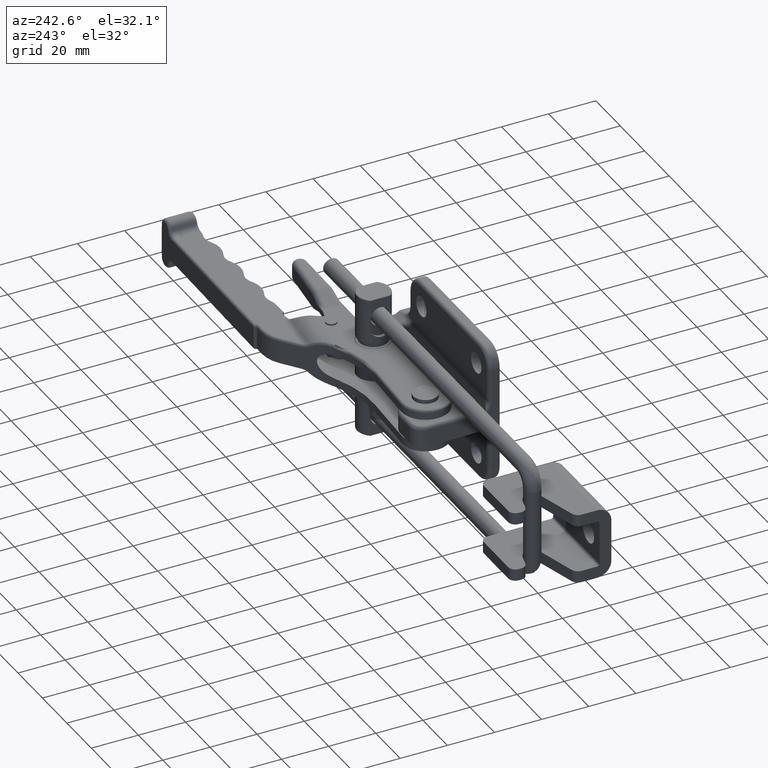
[diagram: clean part render]
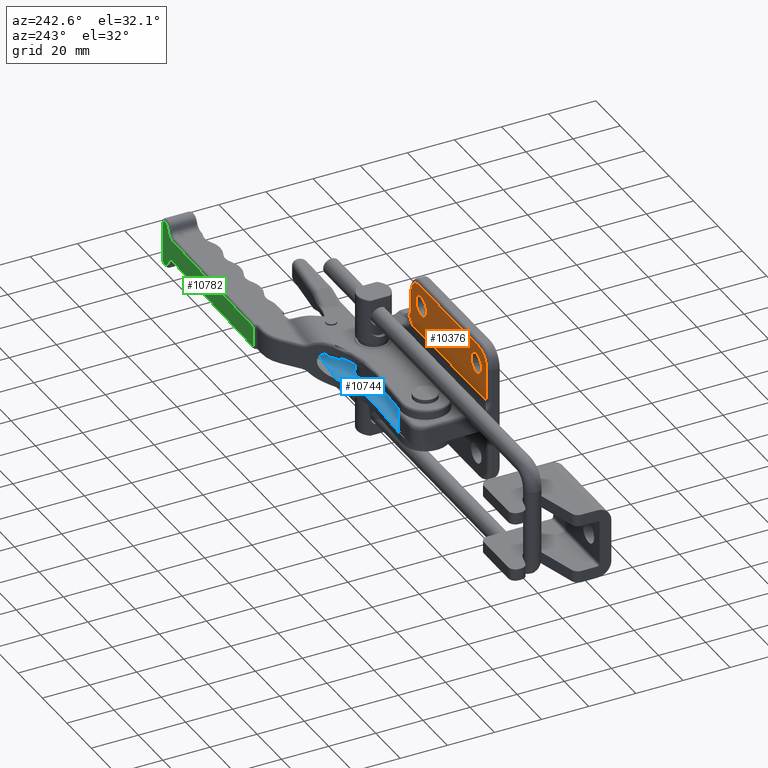
[diagram: same view with three faces highlighted in distinct colors, each labeled with its STEP entity id]
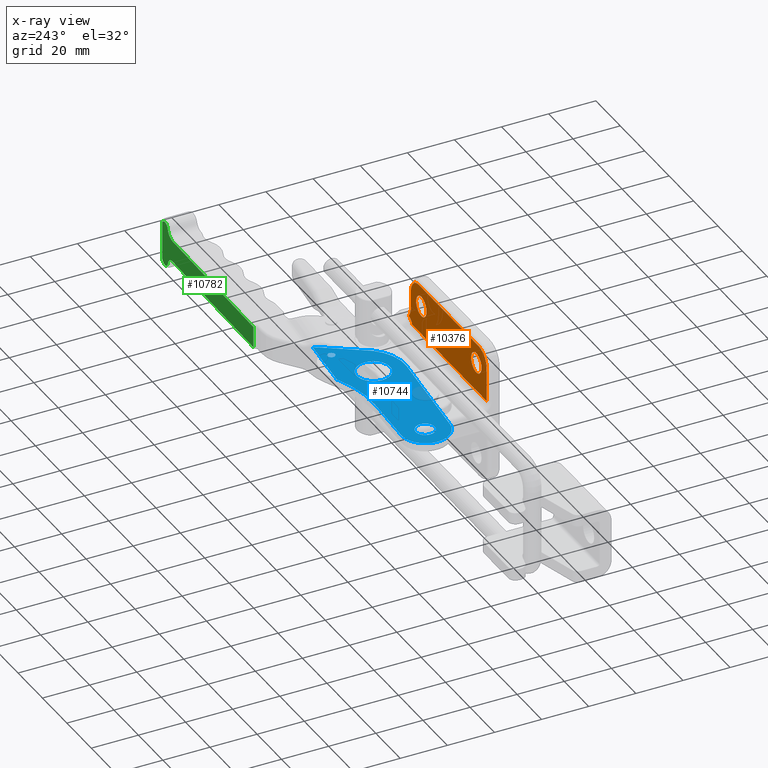
[diagram: x-ray of the same camera — body ghosted, the three highlighted faces saturated]
A machine part, auxiliary view with three faces highlighted in distinct colors.
The next image is the same camera in x-ray (body ghosted, the three faces saturated) — at least one of them is partly hidden behind the body in this view.
Their STEP definitions:

[orange] entity #10376 — the highlighted planar face has unit normal (0, 1, 0).
#233=B_SPLINE_CURVE_WITH_KNOTS('',3,(#17525,#17526,#17527,#17528,#17529,
#17530,#17531,#17532),.UNSPECIFIED.,.F.,.F.,(4,1,1,1,1,4),(0.,0.2,0.4,0.6,
0.8,1.),.UNSPECIFIED.);
#584=FACE_BOUND('',#1794,.T.);
#585=FACE_BOUND('',#1795,.T.);
#682=PLANE('',#11301);
#1077=FACE_OUTER_BOUND('',#1793,.T.);
#1793=EDGE_LOOP('',(#7520,#7521,#7522,#7523,#7524,#7525,#7526,#7527));
#1794=EDGE_LOOP('',(#7528));
#1795=EDGE_LOOP('',(#7529));
#2570=LINE('',#17397,#3100);
#2571=LINE('',#17542,#3101);
#2572=LINE('',#17545,#3102);
#2573=LINE('',#17549,#3103);
#3100=VECTOR('',#13188,60.9374040339998);
#3101=VECTOR('',#13195,7.);
#3102=VECTOR('',#13198,14.25);
#3103=VECTOR('',#13201,49.0000000000001);
#3687=CIRCLE('',#11302,7.5);
#3688=CIRCLE('',#11303,6.5);
#3689=CIRCLE('',#11304,6.5);
#3690=CIRCLE('',#11305,4.25);
#3691=CIRCLE('',#11306,4.25);
#4457=VERTEX_POINT('',#17392);
#4458=VERTEX_POINT('',#17396);
#4459=VERTEX_POINT('',#17524);
#4461=VERTEX_POINT('',#17540);
#4462=VERTEX_POINT('',#17541);
#4463=VERTEX_POINT('',#17544);
#4464=VERTEX_POINT('',#17546);
#4465=VERTEX_POINT('',#17548);
#4466=VERTEX_POINT('',#17551);
#4467=VERTEX_POINT('',#17553);
#5573=EDGE_CURVE('',#4457,#4458,#2570,.T.);
#5576=EDGE_CURVE('',#4459,#4458,#233,.T.);
#5579=EDGE_CURVE('',#4461,#4462,#2571,.T.);
#5580=EDGE_CURVE('',#4461,#4459,#3687,.T.);
#5581=EDGE_CURVE('',#4463,#4457,#2572,.T.);
#5582=EDGE_CURVE('',#4463,#4464,#3688,.T.);
#5583=EDGE_CURVE('',#4465,#4464,#2573,.T.);
#5584=EDGE_CURVE('',#4465,#4462,#3689,.T.);
#5585=EDGE_CURVE('',#4466,#4466,#3690,.T.);
#5586=EDGE_CURVE('',#4467,#4467,#3691,.T.);
#7520=ORIENTED_EDGE('',*,*,#5579,.F.);
#7521=ORIENTED_EDGE('',*,*,#5580,.T.);
#7522=ORIENTED_EDGE('',*,*,#5576,.T.);
#7523=ORIENTED_EDGE('',*,*,#5573,.F.);
#7524=ORIENTED_EDGE('',*,*,#5581,.F.);
#7525=ORIENTED_EDGE('',*,*,#5582,.T.);
#7526=ORIENTED_EDGE('',*,*,#5583,.F.);
#7527=ORIENTED_EDGE('',*,*,#5584,.T.);
#7528=ORIENTED_EDGE('',*,*,#5585,.T.);
#7529=ORIENTED_EDGE('',*,*,#5586,.T.);
#10376=ADVANCED_FACE('',(#1077,#584,#585),#682,.T.);
#11301=AXIS2_PLACEMENT_3D('',#17539,#13193,#13194);
#11302=AXIS2_PLACEMENT_3D('',#17543,#13196,#13197);
#11303=AXIS2_PLACEMENT_3D('',#17547,#13199,#13200);
#11304=AXIS2_PLACEMENT_3D('',#17550,#13202,#13203);
#11305=AXIS2_PLACEMENT_3D('',#17552,#13204,#13205);
#11306=AXIS2_PLACEMENT_3D('',#17554,#13206,#13207);
#13188=DIRECTION('',(1.,2.768599513761E-12,-1.547032518689E-12));
#13193=DIRECTION('center_axis',(0.,1.,0.));
#13194=DIRECTION('ref_axis',(0.,0.,1.));
#13195=DIRECTION('',(0.,0.,1.));
#13196=DIRECTION('center_axis',(0.,-1.,0.));
#13197=DIRECTION('ref_axis',(-1.,0.,0.));
#13198=DIRECTION('',(0.,0.,-1.));
#13199=DIRECTION('center_axis',(0.,1.,0.));
#13200=DIRECTION('ref_axis',(-1.,0.,1.47574260504E-14));
#13201=DIRECTION('',(-1.,0.,0.));
#13202=DIRECTION('center_axis',(0.,1.,0.));
#13203=DIRECTION('ref_axis',(-1.399222618112E-13,0.,1.));
#13204=DIRECTION('center_axis',(0.,-1.,0.));
#13205=DIRECTION('ref_axis',(0.,0.,1.));
#13206=DIRECTION('center_axis',(0.,-1.,0.));
#13207=DIRECTION('ref_axis',(0.,0.,1.));
#17392=CARTESIAN_POINT('',(1412.578671449,831.6022942942,7.75));
#17396=CARTESIAN_POINT('',(1473.516075483,831.6022942944,7.749999999906));
#17397=CARTESIAN_POINT('',(1412.578671449,831.6022942942,7.75));
#17524=CARTESIAN_POINT('',(1476.37258443402,831.60229437595,10.1327039355548));
#17525=CARTESIAN_POINT('Ctrl Pts',(1476.372584434,831.6022944577,10.13270393551));
#17526=CARTESIAN_POINT('Ctrl Pts',(1476.143009248,831.6022944577,10.08799314738));
#17527=CARTESIAN_POINT('Ctrl Pts',(1475.692909311,831.6022942183,9.950280878318));
#17528=CARTESIAN_POINT('Ctrl Pts',(1475.023891861,831.6022943145,9.594923166028));
#17529=CARTESIAN_POINT('Ctrl Pts',(1474.424063406,831.6022942888,9.102527833411));
#17530=CARTESIAN_POINT('Ctrl Pts',(1473.91313261,831.6022942957,8.49749906534));
#17531=CARTESIAN_POINT('Ctrl Pts',(1473.637873026,831.6022942944,8.012418822667));
#17532=CARTESIAN_POINT('Ctrl Pts',(1473.516075483,831.6022942944,7.749999999906));
#17539=CARTESIAN_POINT('Origin',(1419.078671449,831.6022942942,0.));
#17540=CARTESIAN_POINT('',(1474.578671449,831.6022942942,15.));
#17541=CARTESIAN_POINT('',(1474.578671449,831.6022942942,22.));
#17542=CARTESIAN_POINT('',(1474.578671449,831.6022942942,15.));
#17543=CARTESIAN_POINT('Origin',(1482.078671449,831.6022942942,15.));
#17544=CARTESIAN_POINT('',(1412.578671449,831.6022942942,22.));
#17545=CARTESIAN_POINT('',(1412.578671449,831.6022942942,22.));
#17546=CARTESIAN_POINT('',(1419.078671449,831.6022942942,28.5));
#17547=CARTESIAN_POINT('Origin',(1419.078671449,831.6022942942,22.));
#17548=CARTESIAN_POINT('',(1468.078671449,831.6022942942,28.5));
#17549=CARTESIAN_POINT('',(1468.078671449,831.6022942942,28.5));
#17550=CARTESIAN_POINT('Origin',(1468.078671449,831.6022942942,22.));
#17551=CARTESIAN_POINT('',(1421.078671449,831.6022942942,15.75));
#17552=CARTESIAN_POINT('Origin',(1421.078671449,831.6022942942,20.));
#17553=CARTESIAN_POINT('',(1466.078671449,831.6022942942,15.75));
#17554=CARTESIAN_POINT('Origin',(1466.078671449,831.6022942942,20.));

[blue] entity #10744 — the highlighted planar face has unit normal (-0, 0, 1).
#607=FACE_BOUND('',#2185,.T.);
#608=FACE_BOUND('',#2186,.T.);
#609=FACE_BOUND('',#2187,.T.);
#732=PLANE('',#11976);
#1445=FACE_OUTER_BOUND('',#2184,.T.);
#2184=EDGE_LOOP('',(#9233,#9234,#9235,#9236,#9237,#9238,#9239,#9240,#9241));
#2185=EDGE_LOOP('',(#9242));
#2186=EDGE_LOOP('',(#9243));
#2187=EDGE_LOOP('',(#9244));
#2817=LINE('',#28892,#3347);
#2820=LINE('',#28901,#3350);
#2821=LINE('',#28903,#3351);
#2822=LINE('',#28907,#3352);
#2823=LINE('',#28910,#3353);
#3347=VECTOR('',#14789,13.8397362566569);
#3350=VECTOR('',#14798,9.05589759471648);
#3351=VECTOR('',#14799,24.6808242436071);
#3352=VECTOR('',#14802,23.803639088674);
#3353=VECTOR('',#14805,44.1845088580816);
#4063=CIRCLE('',#11977,18.);
#4064=CIRCLE('',#11978,1.);
#4065=CIRCLE('',#11979,46.);
#4066=CIRCLE('',#11980,10.);
#4067=CIRCLE('',#11981,1.55);
#4068=CIRCLE('',#11982,4.05);
#4069=CIRCLE('',#11983,7.076357419562);
#4984=VERTEX_POINT('',#28890);
#4985=VERTEX_POINT('',#28891);
#4986=VERTEX_POINT('',#28896);
#4987=VERTEX_POINT('',#28897);
#4988=VERTEX_POINT('',#28900);
#4989=VERTEX_POINT('',#28902);
#4990=VERTEX_POINT('',#28904);
#4991=VERTEX_POINT('',#28906);
#4992=VERTEX_POINT('',#28908);
#4993=VERTEX_POINT('',#28911);
#4994=VERTEX_POINT('',#28913);
#4995=VERTEX_POINT('',#28915);
#6458=EDGE_CURVE('',#4984,#4985,#2817,.T.);
#6461=EDGE_CURVE('',#4986,#4987,#4063,.T.);
#6462=EDGE_CURVE('',#4987,#4984,#4064,.T.);
#6463=EDGE_CURVE('',#4985,#4988,#2820,.T.);
#6464=EDGE_CURVE('',#4988,#4989,#2821,.T.);
#6465=EDGE_CURVE('',#4989,#4990,#4065,.T.);
#6466=EDGE_CURVE('',#4990,#4991,#2822,.T.);
#6467=EDGE_CURVE('',#4991,#4992,#4066,.T.);
#6468=EDGE_CURVE('',#4992,#4986,#2823,.T.);
#6469=EDGE_CURVE('',#4993,#4993,#4067,.T.);
#6470=EDGE_CURVE('',#4994,#4994,#4068,.T.);
#6471=EDGE_CURVE('',#4995,#4995,#4069,.T.);
#9233=ORIENTED_EDGE('',*,*,#6461,.T.);
#9234=ORIENTED_EDGE('',*,*,#6462,.T.);
#9235=ORIENTED_EDGE('',*,*,#6458,.T.);
#9236=ORIENTED_EDGE('',*,*,#6463,.T.);
#9237=ORIENTED_EDGE('',*,*,#6464,.T.);
#9238=ORIENTED_EDGE('',*,*,#6465,.T.);
#9239=ORIENTED_EDGE('',*,*,#6466,.T.);
#9240=ORIENTED_EDGE('',*,*,#6467,.T.);
#9241=ORIENTED_EDGE('',*,*,#6468,.T.);
#9242=ORIENTED_EDGE('',*,*,#6469,.T.);
#9243=ORIENTED_EDGE('',*,*,#6470,.T.);
#9244=ORIENTED_EDGE('',*,*,#6471,.T.);
#10744=ADVANCED_FACE('',(#1445,#607,#608,#609),#732,.T.);
#11976=AXIS2_PLACEMENT_3D('',#28895,#14792,#14793);
#11977=AXIS2_PLACEMENT_3D('',#28898,#14794,#14795);
#11978=AXIS2_PLACEMENT_3D('',#28899,#14796,#14797);
#11979=AXIS2_PLACEMENT_3D('',#28905,#14800,#14801);
#11980=AXIS2_PLACEMENT_3D('',#28909,#14803,#14804);
#11981=AXIS2_PLACEMENT_3D('',#28912,#14806,#14807);
#11982=AXIS2_PLACEMENT_3D('',#28914,#14808,#14809);
#11983=AXIS2_PLACEMENT_3D('',#28916,#14810,#14811);
#14789=DIRECTION('',(0.563163489027912,0.826345499549618,0.));
#14792=DIRECTION('center_axis',(0.,0.,1.));
#14793=DIRECTION('ref_axis',(1.,0.,0.));
#14794=DIRECTION('center_axis',(0.,0.,1.));
#14795=DIRECTION('ref_axis',(-0.1008954905275,-0.994897029843398,0.));
#14796=DIRECTION('center_axis',(0.,0.,1.));
#14797=DIRECTION('ref_axis',(0.7602486645939,-0.649632178993,0.));
#14798=DIRECTION('',(0.556161293902499,0.831074374027198,0.));
#14799=DIRECTION('',(-0.994897029843438,0.100895490527104,0.));
#14800=DIRECTION('center_axis',(0.,0.,-1.));
#14801=DIRECTION('ref_axis',(0.437874271934526,-0.899036218390454,0.));
#14802=DIRECTION('',(-0.998678449099493,0.0513941174088097,0.));
#14803=DIRECTION('center_axis',(0.,0.,1.));
#14804=DIRECTION('ref_axis',(0.0513941174091986,0.998678449099473,0.));
#14805=DIRECTION('',(0.994897029843448,-0.100895490527005,0.));
#14806=DIRECTION('center_axis',(0.,0.,-1.));
#14807=DIRECTION('ref_axis',(1.,0.,0.));
#14808=DIRECTION('center_axis',(0.,0.,-1.));
#14809=DIRECTION('ref_axis',(1.,0.,0.));
#14810=DIRECTION('center_axis',(0.,0.,-1.));
#14811=DIRECTION('ref_axis',(1.,0.,0.));
#28890=CARTESIAN_POINT('',(1481.595444799,844.0965423069,-5.25));
#28891=CARTESIAN_POINT('',(1489.389478956,855.5329460779,-5.25));
#28892=CARTESIAN_POINT('',(1481.595444799,844.0965423069,-5.25));
#28895=CARTESIAN_POINT('Origin',(1447.364793991,781.0709192894,-5.25));
#28896=CARTESIAN_POINT('',(1466.028753171,837.7953063009,-5.25));
#28897=CARTESIAN_POINT('',(1481.529347964,844.0100736169,-5.25));
#28898=CARTESIAN_POINT('Origin',(1467.844872,855.7034528381,-5.25));
#28899=CARTESIAN_POINT('Origin',(1480.769099299,844.6597057959,-5.25));
#28900=CARTESIAN_POINT('',(1494.42601868,863.0590705025,-5.25));
#28901=CARTESIAN_POINT('',(1489.389478956,855.5329460779,-5.25));
#28902=CARTESIAN_POINT('',(1469.87113994783,865.549254389746,-5.25));
#28903=CARTESIAN_POINT('',(1494.42601868,863.0590705025,-5.25));
#28904=CARTESIAN_POINT('',(1447.364793991,860.9657117631,-5.25));
#28905=CARTESIAN_POINT('Origin',(1449.728923392,906.9049204217,-5.25));
#28906=CARTESIAN_POINT('',(1423.592612623,862.1890787852,-5.25));
#28907=CARTESIAN_POINT('',(1447.364793991,860.9657117631,-5.25));
#28908=CARTESIAN_POINT('',(1422.069716543,842.2533239958,-5.25));
#28909=CARTESIAN_POINT('Origin',(1423.078671449,852.2022942942,-5.25));
#28910=CARTESIAN_POINT('',(1422.069716543,842.2533239958,-5.25));
#28911=CARTESIAN_POINT('',(1484.574376421,859.3778837844,-5.25));
#28912=CARTESIAN_POINT('Origin',(1486.124376421,859.3778837844,-5.25));
#28913=CARTESIAN_POINT('',(1427.128671449,852.2022942942,-5.25));
#28914=CARTESIAN_POINT('Origin',(1423.078671449,852.2022942942,-5.25));
#28915=CARTESIAN_POINT('',(1461.51312153644,850.6022942942,-5.25));
#28916=CARTESIAN_POINT('Origin',(1468.589478956,850.6022942942,-5.25));

[green] entity #10782 — the highlighted planar face has unit normal (-0.0131, -0.9999, -0).
#425=B_SPLINE_CURVE_WITH_KNOTS('',3,(#26454,#26455,#26456,#26457,#26458,
#26459,#26460,#26461,#26462,#26463,#26464,#26465,#26466,#26467,#26468,#26469,
#26470,#26471,#26472,#26473,#26474,#26475,#26476,#26477,#26478,#26479,#26480,
#26481,#26482,#26483,#26484,#26485,#26486,#26487,#26488,#26489,#26490,#26491,
#26492,#26493,#26494,#26495,#26496,#26497,#26498,#26499,#26500,#26501,#26502,
#26503,#26504,#26505,#26506,#26507,#26508,#26509,#26510,#26511,#26512,#26513,
#26514),.UNSPECIFIED.,.F.,.F.,(4,3,3,3,3,3,3,3,3,3,3,3,3,3,3,3,3,3,3,3,
4),(0.,0.0450235349244206,0.0913563487151687,0.138272003353947,0.185690753715187,
0.2,0.254539165078523,0.309411725995415,0.364740403168471,0.4,0.501466094598851,
0.6,0.655339422802585,0.710383166990744,0.764905968275399,0.8,0.847392291533651,
0.894187855672447,0.940389245280325,0.985478090371512,1.),.UNSPECIFIED.);
#469=B_SPLINE_CURVE_WITH_KNOTS('',3,(#29260,#29261,#29262,#29263,#29264,
#29265,#29266,#29267,#29268,#29269,#29270,#29271,#29272,#29273,#29274,#29275,
#29276,#29277,#29278,#29279,#29280,#29281,#29282,#29283,#29284,#29285,#29286,
#29287,#29288,#29289,#29290,#29291,#29292,#29293,#29294,#29295,#29296,#29297,
#29298,#29299,#29300,#29301,#29302,#29303,#29304,#29305,#29306,#29307,#29308,
#29309,#29310,#29311,#29312,#29313,#29314,#29315,#29316,#29317,#29318,#29319,
#29320),.UNSPECIFIED.,.F.,.F.,(4,3,3,3,3,3,3,3,3,3,3,3,3,3,3,3,3,3,3,3,
4),(0.,0.0449708862223974,0.0912493920369136,0.138107952042733,0.185466936322995,
0.2,0.254563954721358,0.309462860249104,0.364822227403985,0.4,0.501542890917698,
0.6,0.655296408265409,0.710300554964332,0.764786991497401,0.8,0.847449884517394,
0.894299123205989,0.940551638560953,0.985690939144371,1.),.UNSPECIFIED.);
#477=B_SPLINE_CURVE_WITH_KNOTS('',3,(#29569,#29570,#29571,#29572,#29573,
#29574,#29575),.UNSPECIFIED.,.F.,.F.,(4,1,1,1,4),(0.,0.25,0.5,0.75,1.),
 .UNSPECIFIED.);
#478=B_SPLINE_CURVE_WITH_KNOTS('',3,(#29582,#29583,#29584,#29585,#29586,
#29587,#29588),.UNSPECIFIED.,.F.,.F.,(4,1,1,1,4),(0.,0.25,0.5,0.75,1.),
 .UNSPECIFIED.);
#479=B_SPLINE_CURVE_WITH_KNOTS('',3,(#29592,#29593,#29594,#29595,#29596,
#29597,#29598,#29599,#29600,#29601,#29602,#29603,#29604,#29605,#29606,#29607,
#29608,#29609,#29610,#29611,#29612,#29613,#29614,#29615,#29616,#29617,#29618,
#29619,#29620,#29621,#29622,#29623,#29624,#29625,#29626,#29627,#29628,#29629),
 .UNSPECIFIED.,.F.,.F.,(4,2,2,2,2,2,2,2,2,2,2,2,2,2,2,2,2,2,4),(0.,0.0516213886161952,
0.104081002306218,0.157448143995541,0.2,0.261670194322705,0.323761981481105,
0.386352785456153,0.4,0.515871561967658,0.6,0.662567342294473,0.724764190911421,
0.786349453105486,0.8,0.853306571537472,0.906124349745927,0.957700334145968,
1.),.UNSPECIFIED.);
#480=B_SPLINE_CURVE_WITH_KNOTS('',3,(#29630,#29631,#29632,#29633,#29634,
#29635,#29636,#29637,#29638,#29639,#29640,#29641,#29642,#29643,#29644,#29645,
#29646,#29647,#29648,#29649,#29650,#29651,#29652,#29653,#29654,#29655,#29656,
#29657,#29658,#29659,#29660,#29661,#29662,#29663,#29664,#29665,#29666,#29667),
 .UNSPECIFIED.,.F.,.F.,(4,2,2,2,2,2,2,2,2,2,2,2,2,2,2,2,2,2,4),(2.95767299489479E-14,
0.051645036092066,0.10410411150623,0.157430442392612,0.2,0.261704952390363,
0.323835287706328,0.38646455269097,0.4,0.515961571021608,0.6,0.662514236281628,
0.724658325644794,0.786196404957401,0.8,0.853343159763388,0.90617240055389,
0.957720559956502,1.),.UNSPECIFIED.);
#738=PLANE('',#12025);
#1483=FACE_OUTER_BOUND('',#2231,.T.);
#2231=EDGE_LOOP('',(#9393,#9394,#9395,#9396,#9397,#9398,#9399,#9400,#9401,
#9402,#9403,#9404));
#2777=LINE('',#26525,#3307);
#2779=LINE('',#26657,#3309);
#2833=LINE('',#29241,#3363);
#2839=LINE('',#29580,#3369);
#2840=LINE('',#29589,#3370);
#2841=LINE('',#29591,#3371);
#3307=VECTOR('',#14571,67.9736016587771);
#3309=VECTOR('',#14577,9.);
#3363=VECTOR('',#14883,67.9736016587693);
#3369=VECTOR('',#14911,0.0911124488487401);
#3370=VECTOR('',#14912,16.9383365791646);
#3371=VECTOR('',#14913,0.0911124488487401);
#4905=VERTEX_POINT('',#26450);
#4906=VERTEX_POINT('',#26452);
#4907=VERTEX_POINT('',#26516);
#4910=VERTEX_POINT('',#26656);
#5000=VERTEX_POINT('',#29240);
#5001=VERTEX_POINT('',#29259);
#5009=VERTEX_POINT('',#29541);
#5011=VERTEX_POINT('',#29568);
#5012=VERTEX_POINT('',#29578);
#5013=VERTEX_POINT('',#29579);
#5014=VERTEX_POINT('',#29581);
#5015=VERTEX_POINT('',#29590);
#6323=EDGE_CURVE('',#4906,#4905,#425,.T.);
#6325=EDGE_CURVE('',#4905,#4907,#2777,.T.);
#6329=EDGE_CURVE('',#4907,#4910,#2779,.T.);
#6496=EDGE_CURVE('',#4910,#5000,#2833,.T.);
#6498=EDGE_CURVE('',#5000,#5001,#469,.T.);
#6515=EDGE_CURVE('',#5011,#5009,#477,.T.);
#6517=EDGE_CURVE('',#5012,#5013,#2839,.T.);
#6518=EDGE_CURVE('',#5014,#5012,#478,.T.);
#6519=EDGE_CURVE('',#5009,#5014,#2840,.T.);
#6520=EDGE_CURVE('',#5015,#5011,#2841,.T.);
#6521=EDGE_CURVE('',#5001,#5015,#479,.T.);
#6522=EDGE_CURVE('',#5013,#4906,#480,.T.);
#9393=ORIENTED_EDGE('',*,*,#6517,.F.);
#9394=ORIENTED_EDGE('',*,*,#6518,.F.);
#9395=ORIENTED_EDGE('',*,*,#6519,.F.);
#9396=ORIENTED_EDGE('',*,*,#6515,.F.);
#9397=ORIENTED_EDGE('',*,*,#6520,.F.);
#9398=ORIENTED_EDGE('',*,*,#6521,.F.);
#9399=ORIENTED_EDGE('',*,*,#6498,.F.);
#9400=ORIENTED_EDGE('',*,*,#6496,.F.);
#9401=ORIENTED_EDGE('',*,*,#6329,.F.);
#9402=ORIENTED_EDGE('',*,*,#6325,.F.);
#9403=ORIENTED_EDGE('',*,*,#6323,.F.);
#9404=ORIENTED_EDGE('',*,*,#6522,.F.);
#10782=ADVANCED_FACE('',(#1483),#738,.F.);
#12025=AXIS2_PLACEMENT_3D('',#29577,#14909,#14910);
#14571=DIRECTION('',(-0.999904767694858,0.0138005630715294,0.));
#14577=DIRECTION('',(1.288450827512E-12,1.503192632097E-12,-1.));
#14883=DIRECTION('',(0.999904767694856,-0.0138005630717394,0.));
#14909=DIRECTION('center_axis',(-0.0138005631309105,-0.999904767694039,
0.));
#14910=DIRECTION('ref_axis',(0.999904767694039,-0.0138005631308716,0.));
#14911=DIRECTION('',(-0.99990476769402,0.0138005631323103,-3.89926267003808E-14));
#14912=DIRECTION('',(1.281642273621E-8,-7.802320698729E-9,1.));
#14913=DIRECTION('',(0.99990476769402,-0.0138005631322703,-3.89926267002808E-14));
#26450=CARTESIAN_POINT('',(1571.468011068,882.4769422576,4.5));
#26452=CARTESIAN_POINT('',(1575.3656251,882.4231478661,7.600775328062));
#26454=CARTESIAN_POINT('Ctrl Pts',(1575.3656251,882.423147866178,7.60077532806202));
#26455=CARTESIAN_POINT('Ctrl Pts',(1575.3467601522,882.423408237882,7.5205563852631));
#26456=CARTESIAN_POINT('Ctrl Pts',(1575.32576059768,882.423697973975,7.44161665996632));
#26457=CARTESIAN_POINT('Ctrl Pts',(1575.3026455502,882.42401703343,7.36383849220293));
#26458=CARTESIAN_POINT('Ctrl Pts',(1575.27885831998,882.424345371095,7.28379854487281));
#26459=CARTESIAN_POINT('Ctrl Pts',(1575.2528304511,882.424704712281,7.20498845640978));
#26460=CARTESIAN_POINT('Ctrl Pts',(1575.22454154565,882.425095025272,7.12731667858477));
#26461=CARTESIAN_POINT('Ctrl Pts',(1575.1958967816,882.425490248182,7.04866783329608));
#26462=CARTESIAN_POINT('Ctrl Pts',(1575.16493331663,882.425917197212,6.97118593615652));
#26463=CARTESIAN_POINT('Ctrl Pts',(1575.13159414494,882.426376472844,6.89481605795029));
#26464=CARTESIAN_POINT('Ctrl Pts',(1575.0978974637,882.426840673476,6.81762723435479));
#26465=CARTESIAN_POINT('Ctrl Pts',(1575.0617734273,882.427337894418,6.74157418933183));
#26466=CARTESIAN_POINT('Ctrl Pts',(1575.02313323377,882.427869655663,6.66664393650734));
#26467=CARTESIAN_POINT('Ctrl Pts',(1575.01147303519,882.428030121777,6.64403272398738));
#26468=CARTESIAN_POINT('Ctrl Pts',(1574.9995835317,882.428193739242,6.62152406587965));
#26469=CARTESIAN_POINT('Ctrl Pts',(1574.98746184466,882.428360564232,6.59911842473681));
#26470=CARTESIAN_POINT('Ctrl Pts',(1574.94126048105,882.428996411534,6.51372014891875));
#26471=CARTESIAN_POINT('Ctrl Pts',(1574.89180070839,882.429676700736,6.42971604546373));
#26472=CARTESIAN_POINT('Ctrl Pts',(1574.8392215042,882.430399508725,6.34744440268893));
#26473=CARTESIAN_POINT('Ctrl Pts',(1574.78632088534,882.431126735212,6.26466983649611));
#26474=CARTESIAN_POINT('Ctrl Pts',(1574.73026276053,882.431896997903,6.18364937403155));
#26475=CARTESIAN_POINT('Ctrl Pts',(1574.67123979738,882.432707808219,6.10471316121387));
#26476=CARTESIAN_POINT('Ctrl Pts',(1574.61172621865,882.43352535822,6.02512080825504));
#26477=CARTESIAN_POINT('Ctrl Pts',(1574.54919853183,882.4343841311,5.94764793556537));
#26478=CARTESIAN_POINT('Ctrl Pts',(1574.48390303885,882.435281081213,5.87261208049306));
#26479=CARTESIAN_POINT('Ctrl Pts',(1574.44229183694,882.435852685325,5.82479358684856));
#26480=CARTESIAN_POINT('Ctrl Pts',(1574.39955754935,882.436439784295,5.77796437344555));
#26481=CARTESIAN_POINT('Ctrl Pts',(1574.3557734129,882.437041488367,5.73220100412502));
#26482=CARTESIAN_POINT('Ctrl Pts',(1574.22977635876,882.438773004545,5.60050833665567));
#26483=CARTESIAN_POINT('Ctrl Pts',(1574.09490667751,882.440630070777,5.47772951718796));
#26484=CARTESIAN_POINT('Ctrl Pts',(1573.95228683792,882.442598612267,5.36472518693577));
#26485=CARTESIAN_POINT('Ctrl Pts',(1573.81378845737,882.444510266419,5.25498648031647));
#26486=CARTESIAN_POINT('Ctrl Pts',(1573.66798021059,882.446527049156,5.15446488774701));
#26487=CARTESIAN_POINT('Ctrl Pts',(1573.51586138442,882.448633834477,5.06398596324454));
#26488=CARTESIAN_POINT('Ctrl Pts',(1573.43042715745,882.449817064586,5.01317044509998));
#26489=CARTESIAN_POINT('Ctrl Pts',(1573.34301476448,882.451027876844,4.96546736596894));
#26490=CARTESIAN_POINT('Ctrl Pts',(1573.25397944626,882.452260921118,4.92107720061425));
#26491=CARTESIAN_POINT('Ctrl Pts',(1573.16541984388,882.453487377235,4.87692421197593));
#26492=CARTESIAN_POINT('Ctrl Pts',(1573.07525509444,882.45473581831,4.83604900526686));
#26493=CARTESIAN_POINT('Ctrl Pts',(1572.98384838704,882.456000943487,4.79859940251306));
#26494=CARTESIAN_POINT('Ctrl Pts',(1572.89330676751,882.457254095314,4.76150422886072));
#26495=CARTESIAN_POINT('Ctrl Pts',(1572.80154703373,882.458523610521,4.7277702118442));
#26496=CARTESIAN_POINT('Ctrl Pts',(1572.70892863418,882.459804424405,4.6974904704025));
#26497=CARTESIAN_POINT('Ctrl Pts',(1572.64931406971,882.460628830378,4.6780006756427));
#26498=CARTESIAN_POINT('Ctrl Pts',(1572.58934387389,882.461457919651,4.65994094353215));
#26499=CARTESIAN_POINT('Ctrl Pts',(1572.52911407245,882.462290375663,4.64332465151086));
#26500=CARTESIAN_POINT('Ctrl Pts',(1572.44777749842,882.463414555362,4.62088538999024));
#26501=CARTESIAN_POINT('Ctrl Pts',(1572.36591431386,882.46454600191,4.6011796495958));
#26502=CARTESIAN_POINT('Ctrl Pts',(1572.28350409416,882.465684552069,4.58411323296267));
#26503=CARTESIAN_POINT('Ctrl Pts',(1572.20213152074,882.466808766478,4.56726170356135));
#26504=CARTESIAN_POINT('Ctrl Pts',(1572.12022527765,882.467939911836,4.5529831152188));
#26505=CARTESIAN_POINT('Ctrl Pts',(1572.0377298644,882.469078812945,4.54122236672499));
#26506=CARTESIAN_POINT('Ctrl Pts',(1571.95628191525,882.470203253153,4.52961094728294));
#26507=CARTESIAN_POINT('Ctrl Pts',(1571.87425938715,882.471335283817,4.52045348829962));
#26508=CARTESIAN_POINT('Ctrl Pts',(1571.79157811668,882.472476394464,4.51373689150564));
#26509=CARTESIAN_POINT('Ctrl Pts',(1571.71088783815,882.473590026795,4.50718203255109));
#26510=CARTESIAN_POINT('Ctrl Pts',(1571.62956987853,882.474712356593,4.50295162791107));
#26511=CARTESIAN_POINT('Ctrl Pts',(1571.54752068423,882.475844841132,4.50107615176692));
#26512=CARTESIAN_POINT('Ctrl Pts',(1571.52109483583,882.476209584077,4.50047211112183));
#26513=CARTESIAN_POINT('Ctrl Pts',(1571.49459295263,882.476575377715,4.50011270418158));
#26514=CARTESIAN_POINT('Ctrl Pts',(1571.468011068,882.47694225763,4.5));
#26516=CARTESIAN_POINT('',(1503.50088269201,883.415016235522,4.5));
#26525=CARTESIAN_POINT('',(1571.468011068,882.4769422576,4.5));
#26656=CARTESIAN_POINT('',(1503.50088269202,883.415016235527,-4.5));
#26657=CARTESIAN_POINT('',(1503.500882692,883.4150162345,4.5));
#29240=CARTESIAN_POINT('',(1571.468011068,882.4769422576,-4.5));
#29241=CARTESIAN_POINT('',(1503.500882692,883.4150162345,-4.5));
#29259=CARTESIAN_POINT('',(1575.365625474,882.423147861,-7.600776318592));
#29260=CARTESIAN_POINT('Ctrl Pts',(1571.468011068,882.476942257627,-4.50000000000002));
#29261=CARTESIAN_POINT('Ctrl Pts',(1571.5503271131,882.475806141653,-4.50034860558657));
#29262=CARTESIAN_POINT('Ctrl Pts',(1571.63187778822,882.474680491516,-4.50305955700992));
#29263=CARTESIAN_POINT('Ctrl Pts',(1571.71277331545,882.473564009568,-4.50808765188954));
#29264=CARTESIAN_POINT('Ctrl Pts',(1571.79602104396,882.472415063646,-4.5132619488107));
#29265=CARTESIAN_POINT('Ctrl Pts',(1571.87857528189,882.471275768378,-4.52089036227416));
#29266=CARTESIAN_POINT('Ctrl Pts',(1571.96052969579,882.470144518634,-4.53097206008653));
#29267=CARTESIAN_POINT('Ctrl Pts',(1572.04351132524,882.468999089821,-4.54118012176844));
#29268=CARTESIAN_POINT('Ctrl Pts',(1572.12587827577,882.467861870054,-4.55390372574761));
#29269=CARTESIAN_POINT('Ctrl Pts',(1572.20769667032,882.466731758884,-4.5691858845206));
#29270=CARTESIAN_POINT('Ctrl Pts',(1572.29038884141,882.465589578733,-4.58463124854819));
#29271=CARTESIAN_POINT('Ctrl Pts',(1572.37252098572,882.464454646196,-4.60269047420157));
#29272=CARTESIAN_POINT('Ctrl Pts',(1572.45412537488,882.46332680788,-4.62344686524706));
#29273=CARTESIAN_POINT('Ctrl Pts',(1572.47916733475,882.462980707846,-4.62981638430143));
#29274=CARTESIAN_POINT('Ctrl Pts',(1572.5041593244,882.46263528332,-4.63644014649111));
#29275=CARTESIAN_POINT('Ctrl Pts',(1572.5291015352,882.462290548948,-4.64332120191924));
#29276=CARTESIAN_POINT('Ctrl Pts',(1572.62274632277,882.460996254019,-4.6691559195782));
#29277=CARTESIAN_POINT('Ctrl Pts',(1572.71576389914,882.459710085098,-4.69848256669207));
#29278=CARTESIAN_POINT('Ctrl Pts',(1572.80779312911,882.458437021641,-4.73124148878727));
#29279=CARTESIAN_POINT('Ctrl Pts',(1572.90038729732,882.457156143251,-4.76420150751171));
#29280=CARTESIAN_POINT('Ctrl Pts',(1572.99198051906,882.455888536078,-4.80063598445321));
#29281=CARTESIAN_POINT('Ctrl Pts',(1573.08220737826,882.454639414593,-4.84043109749758));
#29282=CARTESIAN_POINT('Ctrl Pts',(1573.1731910104,882.453379816169,-4.88055998991932));
#29283=CARTESIAN_POINT('Ctrl Pts',(1573.26278478477,882.452139022853,-4.92410600899724));
#29284=CARTESIAN_POINT('Ctrl Pts',(1573.35062333237,882.450922432777,-4.97090017632665));
#29285=CARTESIAN_POINT('Ctrl Pts',(1573.40643980231,882.450149358025,-5.00063524487483));
#29286=CARTESIAN_POINT('Ctrl Pts',(1573.46154773996,882.449386057193,-5.03168083227654));
#29287=CARTESIAN_POINT('Ctrl Pts',(1573.51585669375,882.448633899368,-5.06398316798901));
#29288=CARTESIAN_POINT('Ctrl Pts',(1573.67262296303,882.446462747689,-5.15722592640087));
#29289=CARTESIAN_POINT('Ctrl Pts',(1573.82268752758,882.444387191583,-5.26113432309009));
#29290=CARTESIAN_POINT('Ctrl Pts',(1573.96495602314,882.442423752424,-5.37480536042983));
#29291=CARTESIAN_POINT('Ctrl Pts',(1574.1029011285,882.44051998012,-5.48502205429891));
#29292=CARTESIAN_POINT('Ctrl Pts',(1574.23351766522,882.438721588306,-5.60441803569068));
#29293=CARTESIAN_POINT('Ctrl Pts',(1574.35577935607,882.437041406599,-5.73220720506541));
#29294=CARTESIAN_POINT('Ctrl Pts',(1574.42444511759,882.436097767135,-5.80397736110093));
#29295=CARTESIAN_POINT('Ctrl Pts',(1574.49052654122,882.435190073726,-5.87837030885255));
#29296=CARTESIAN_POINT('Ctrl Pts',(1574.55374899409,882.434321671687,-5.9550855600286));
#29297=CARTESIAN_POINT('Ctrl Pts',(1574.61663729337,882.433457859468,-6.03139534328755));
#29298=CARTESIAN_POINT('Ctrl Pts',(1574.67669648554,882.432632924717,-6.11000251894379));
#29299=CARTESIAN_POINT('Ctrl Pts',(1574.73370137411,882.431849688153,-6.19058689644191));
#29300=CARTESIAN_POINT('Ctrl Pts',(1574.79016972112,882.43107382357,-6.27041279746246));
#29301=CARTESIAN_POINT('Ctrl Pts',(1574.84364080452,882.430338878185,-6.35217844172939));
#29302=CARTESIAN_POINT('Ctrl Pts',(1574.8939434905,882.429647110457,-6.43555483016596));
#29303=CARTESIAN_POINT('Ctrl Pts',(1574.92645266199,882.429200040976,-6.48943857925553));
#29304=CARTESIAN_POINT('Ctrl Pts',(1574.95763947875,882.428770995682,-6.5439947399195));
#29305=CARTESIAN_POINT('Ctrl Pts',(1574.98746901641,882.428360465546,-6.59913170131101));
#29306=CARTESIAN_POINT('Ctrl Pts',(1575.02766461962,882.427807272044,-6.6734293135265));
#29307=CARTESIAN_POINT('Ctrl Pts',(1575.06530884652,882.427289290556,-6.74885594611126));
#29308=CARTESIAN_POINT('Ctrl Pts',(1575.10049839946,882.426804742272,-6.82541093417223));
#29309=CARTESIAN_POINT('Ctrl Pts',(1575.13524250436,882.426326327656,-6.90099684855219));
#29310=CARTESIAN_POINT('Ctrl Pts',(1575.16759408477,882.425880500226,-6.97768297267417));
#29311=CARTESIAN_POINT('Ctrl Pts',(1575.19761941867,882.425466403838,-7.05551146759224));
#29312=CARTESIAN_POINT('Ctrl Pts',(1575.22726231696,882.425057581837,-7.13234865336124));
#29313=CARTESIAN_POINT('Ctrl Pts',(1575.25463824548,882.424679708826,-7.21029948254589));
#29314=CARTESIAN_POINT('Ctrl Pts',(1575.2797788612,882.424332675482,-7.28944336125463));
#29315=CARTESIAN_POINT('Ctrl Pts',(1575.30431438757,882.423993994605,-7.36668238929352));
#29316=CARTESIAN_POINT('Ctrl Pts',(1575.32672122737,882.423684728122,-7.44505793766));
#29317=CARTESIAN_POINT('Ctrl Pts',(1575.34699288952,882.423404992209,-7.52467804076257));
#29318=CARTESIAN_POINT('Ctrl Pts',(1575.35341896266,882.423316316528,-7.54991744159291));
#29319=CARTESIAN_POINT('Ctrl Pts',(1575.35963018105,882.423230607297,-7.57528215559059));
#29320=CARTESIAN_POINT('Ctrl Pts',(1575.365625474,882.42314786098,-7.600776318592));
#29541=CARTESIAN_POINT('',(1579.84199997591,882.361364133321,-8.46916809648185));
#29568=CARTESIAN_POINT('',(1577.844017385,882.3889413994,-9.5));
#29569=CARTESIAN_POINT('Ctrl Pts',(1577.844017385,882.3889413994,-9.5));
#29570=CARTESIAN_POINT('Ctrl Pts',(1578.04233495,882.3862042447,-9.499342090977));
#29571=CARTESIAN_POINT('Ctrl Pts',(1578.426522745,882.3809017933,-9.453518741156));
#29572=CARTESIAN_POINT('Ctrl Pts',(1578.97927251,882.3732725319,-9.247840917836));
#29573=CARTESIAN_POINT('Ctrl Pts',(1579.467060112,882.3665411623,-8.915480905717));
#29574=CARTESIAN_POINT('Ctrl Pts',(1579.726709085,882.3629549964,-8.630492323687));
#29575=CARTESIAN_POINT('Ctrl Pts',(1579.841999972,882.3613637657,-8.469168093522));
#29577=CARTESIAN_POINT('Origin',(1575.842380105,882.416567752,21.));
#29578=CARTESIAN_POINT('',(1577.844017385,882.3889413994,9.5));
#29579=CARTESIAN_POINT('',(1577.752913613,882.3901988025,9.5));
#29580=CARTESIAN_POINT('',(1577.844017385,882.3889413994,9.5));
#29581=CARTESIAN_POINT('',(1579.84200019322,882.361364033406,8.46916848361088));
#29582=CARTESIAN_POINT('Ctrl Pts',(1579.842000189,882.3613636336,8.469168480574));
#29583=CARTESIAN_POINT('Ctrl Pts',(1579.726709301,882.3629548643,8.630492710998));
#29584=CARTESIAN_POINT('Ctrl Pts',(1579.46706001,882.3665412237,8.915480726623));
#29585=CARTESIAN_POINT('Ctrl Pts',(1578.979272536,882.3732725154,9.247840966738));
#29586=CARTESIAN_POINT('Ctrl Pts',(1578.426522736,882.380901798,9.453518727479));
#29587=CARTESIAN_POINT('Ctrl Pts',(1578.04233495,882.3862042447,9.49934209102));
#29588=CARTESIAN_POINT('Ctrl Pts',(1577.844017385,882.3889413994,9.5));
#29589=CARTESIAN_POINT('',(1579.841999972,882.3613637657,-8.469168093522));
#29590=CARTESIAN_POINT('',(1577.752913613,882.3901988025,-9.5));
#29591=CARTESIAN_POINT('',(1577.752913613,882.3901988025,-9.5));
#29592=CARTESIAN_POINT('Ctrl Pts',(1575.365625474,882.423147861019,-7.600776318592));
#29593=CARTESIAN_POINT('Ctrl Pts',(1575.37887255397,882.422965026403,-7.65710853393565));
#29594=CARTESIAN_POINT('Ctrl Pts',(1575.39383756872,882.422758443641,-7.71241170726057));
#29595=CARTESIAN_POINT('Ctrl Pts',(1575.427444525,882.422294640215,-7.82205579994467));
#29596=CARTESIAN_POINT('Ctrl Pts',(1575.44614266954,882.422036608343,-7.8763667038128));
#29597=CARTESIAN_POINT('Ctrl Pts',(1575.48746169942,882.421466085455,-7.98415645496056));
#29598=CARTESIAN_POINT('Ctrl Pts',(1575.51014529668,882.421152703186,-8.03760491166717));
#29599=CARTESIAN_POINT('Ctrl Pts',(1575.55434442081,882.420541750367,-8.1321030157722));
#29600=CARTESIAN_POINT('Ctrl Pts',(1575.57516581782,882.420253841674,-8.17346946590358));
#29601=CARTESIAN_POINT('Ctrl Pts',(1575.62924227957,882.419506180974,-8.27342481656744));
#29602=CARTESIAN_POINT('Ctrl Pts',(1575.66379315939,882.419028286026,-8.33147847560837));
#29603=CARTESIAN_POINT('Ctrl Pts',(1575.73800125461,882.418001502985,-8.44519187092632));
#29604=CARTESIAN_POINT('Ctrl Pts',(1575.77769155294,882.417452153963,-8.50083207652282));
#29605=CARTESIAN_POINT('Ctrl Pts',(1575.86197029344,882.416285546728,-8.60914578985305));
#29606=CARTESIAN_POINT('Ctrl Pts',(1575.90659525958,882.415667783629,-8.66179136478027));
#29607=CARTESIAN_POINT('Ctrl Pts',(1575.96349024399,882.414880356331,-8.72347648682356));
#29608=CARTESIAN_POINT('Ctrl Pts',(1575.97377387128,882.414738038395,-8.73442351242968));
#29609=CARTESIAN_POINT('Ctrl Pts',(1576.07228442288,882.413374820582,-8.83738824732724));
#29610=CARTESIAN_POINT('Ctrl Pts',(1576.16750208953,882.412058978308,-8.9223847805785));
#29611=CARTESIAN_POINT('Ctrl Pts',(1576.34232152959,882.409647128195,-9.05544392360047));
#29612=CARTESIAN_POINT('Ctrl Pts',(1576.41905635661,882.40858959548,-9.10724518303652));
#29613=CARTESIAN_POINT('Ctrl Pts',(1576.55777338912,882.406679101784,-9.18975195481514));
#29614=CARTESIAN_POINT('Ctrl Pts',(1576.6184868232,882.405843007711,-9.22250400144446));
#29615=CARTESIAN_POINT('Ctrl Pts',(1576.74201390936,882.404141610371,-9.2826046367183));
#29616=CARTESIAN_POINT('Ctrl Pts',(1576.8048124598,882.403276514689,-9.30998388776726));
#29617=CARTESIAN_POINT('Ctrl Pts',(1576.93157485412,882.401529738898,-9.35909277767738));
#29618=CARTESIAN_POINT('Ctrl Pts',(1576.99552068222,882.400648312616,-9.38087523292186));
#29619=CARTESIAN_POINT('Ctrl Pts',(1577.07432418245,882.399561754806,-9.40416556611029));
#29620=CARTESIAN_POINT('Ctrl Pts',(1577.08864954074,882.39936422109,-9.40825796538311));
#29621=CARTESIAN_POINT('Ctrl Pts',(1577.15903459479,882.398393613711,-9.42767569160729));
#29622=CARTESIAN_POINT('Ctrl Pts',(1577.21547703384,882.397615264038,-9.44101679257535));
#29623=CARTESIAN_POINT('Ctrl Pts',(1577.32869467671,882.396053513744,-9.46352074461747));
#29624=CARTESIAN_POINT('Ctrl Pts',(1577.38546242879,882.395270222858,-9.47272119098411));
#29625=CARTESIAN_POINT('Ctrl Pts',(1577.4986009051,882.393708829088,-9.48703615879589));
#29626=CARTESIAN_POINT('Ctrl Pts',(1577.55494993631,882.392931054267,-9.49224194863373));
#29627=CARTESIAN_POINT('Ctrl Pts',(1577.65848139679,882.391502109322,-9.49831811033042));
#29628=CARTESIAN_POINT('Ctrl Pts',(1577.70549025228,882.390853333936,-9.49979924035563));
#29629=CARTESIAN_POINT('Ctrl Pts',(1577.752913613,882.390198802521,-9.5));
#29630=CARTESIAN_POINT('Ctrl Pts',(1577.752913613,882.390198802527,9.5));
#29631=CARTESIAN_POINT('Ctrl Pts',(1577.69501409552,882.390997924576,9.49975517694913));
#29632=CARTESIAN_POINT('Ctrl Pts',(1577.63773168622,882.391788491595,9.49760303182739));
#29633=CARTESIAN_POINT('Ctrl Pts',(1577.52330626152,882.39336781309,9.48949793556559));
#29634=CARTESIAN_POINT('Ctrl Pts',(1577.46617937996,882.394156309289,9.48348522591187));
#29635=CARTESIAN_POINT('Ctrl Pts',(1577.35189896496,882.39573335146,9.46745663066402));
#29636=CARTESIAN_POINT('Ctrl Pts',(1577.29476024592,882.396521667448,9.45737583305567));
#29637=CARTESIAN_POINT('Ctrl Pts',(1577.19276450503,882.397928478172,9.43555781397329));
#29638=CARTESIAN_POINT('Ctrl Pts',(1577.14775557195,882.398549150863,9.42456397181261));
#29639=CARTESIAN_POINT('Ctrl Pts',(1577.03814273043,882.400060708506,9.39432432127296));
#29640=CARTESIAN_POINT('Ctrl Pts',(1576.97376973418,882.400948147814,9.37369356557343));
#29641=CARTESIAN_POINT('Ctrl Pts',(1576.84620745933,882.402706172413,9.32691064576014));
#29642=CARTESIAN_POINT('Ctrl Pts',(1576.78302988374,882.403576591796,9.30072150320717));
#29643=CARTESIAN_POINT('Ctrl Pts',(1576.65846863333,882.405292365669,9.24289732404689));
#29644=CARTESIAN_POINT('Ctrl Pts',(1576.59710398015,882.40613745681,9.21122040214811));
#29645=CARTESIAN_POINT('Ctrl Pts',(1576.5242832875,882.40714035192,9.16967548167176));
#29646=CARTESIAN_POINT('Ctrl Pts',(1576.51141142428,882.407317626459,9.16217653436067));
#29647=CARTESIAN_POINT('Ctrl Pts',(1576.38895607202,882.40900415405,9.08934229885998));
#29648=CARTESIAN_POINT('Ctrl Pts',(1576.2846528933,882.410442073993,9.01560198080865));
#29649=CARTESIAN_POINT('Ctrl Pts',(1576.11571767997,882.412774689614,8.87514311248732));
#29650=CARTESIAN_POINT('Ctrl Pts',(1576.04806946235,882.413709913858,8.81207878389824));
#29651=CARTESIAN_POINT('Ctrl Pts',(1575.93660211999,882.415252432216,8.69557075512479));
#29652=CARTESIAN_POINT('Ctrl Pts',(1575.89107813356,882.41588261277,8.64381867417427));
#29653=CARTESIAN_POINT('Ctrl Pts',(1575.80481543074,882.417076706276,8.53705941865153));
#29654=CARTESIAN_POINT('Ctrl Pts',(1575.76405028026,882.417640983193,8.48207381625249));
#29655=CARTESIAN_POINT('Ctrl Pts',(1575.68775125143,882.41869683506,8.36969731740832));
#29656=CARTESIAN_POINT('Ctrl Pts',(1575.6521704326,882.419189062975,8.31233556287497));
#29657=CARTESIAN_POINT('Ctrl Pts',(1575.61169162442,882.419748826926,8.24069348607215));
#29658=CARTESIAN_POINT('Ctrl Pts',(1575.60440187418,882.419849624264,8.22750966482326));
#29659=CARTESIAN_POINT('Ctrl Pts',(1575.56956247075,882.420331313227,8.16311195250646));
#29660=CARTESIAN_POINT('Ctrl Pts',(1575.54385982555,882.420686719258,8.11107955900193));
#29661=CARTESIAN_POINT('Ctrl Pts',(1575.49646757233,882.421341686568,8.00577504581638));
#29662=CARTESIAN_POINT('Ctrl Pts',(1575.47474121619,882.421641762063,7.95251946296463));
#29663=CARTESIAN_POINT('Ctrl Pts',(1575.43537578129,882.422185209431,7.84551744016152));
#29664=CARTESIAN_POINT('Ctrl Pts',(1575.41765000307,882.42242980661,7.79181394924512));
#29665=CARTESIAN_POINT('Ctrl Pts',(1575.38847705283,882.422832431646,7.69235849674167));
#29666=CARTESIAN_POINT('Ctrl Pts',(1575.37647447742,882.422998124361,7.64691237781136));
#29667=CARTESIAN_POINT('Ctrl Pts',(1575.3656251,882.423147866144,7.600775328062));